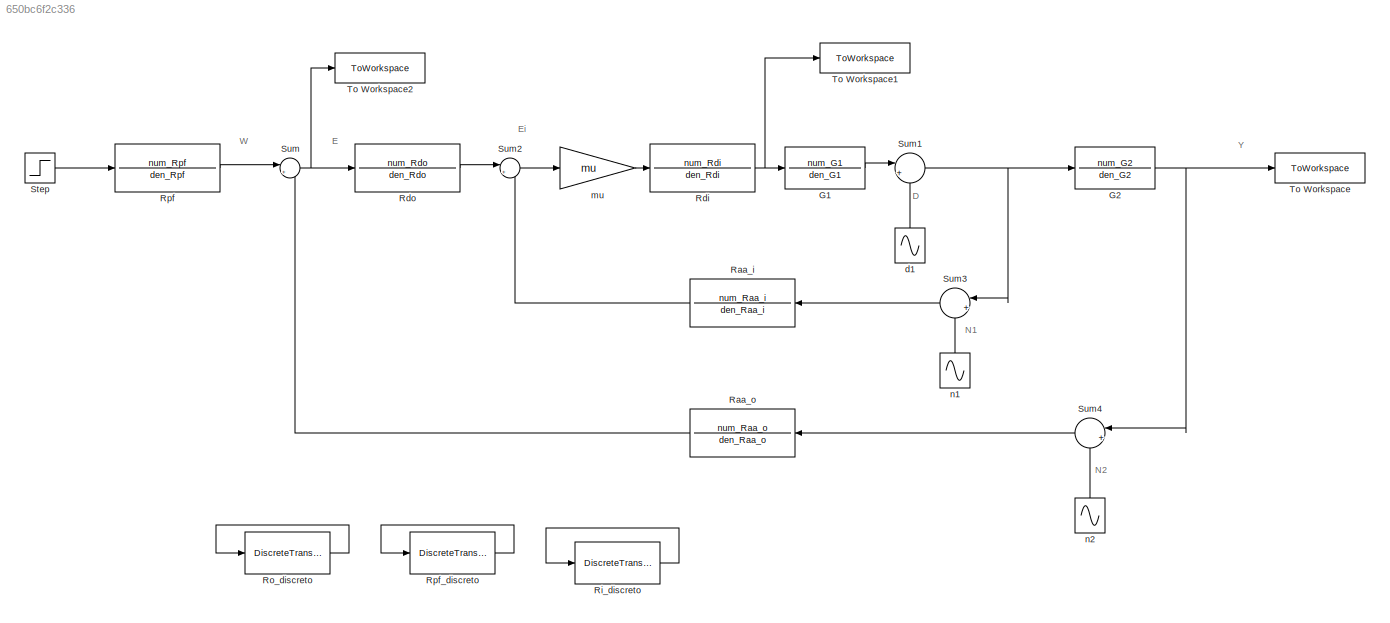
MODEL slx_650bc6f2c336
KIND model
CONFIG AbsTol = auto
CONFIG EnableMultiTasking = off
CONFIG FixedStep = auto
CONFIG MaxStep = auto
CONFIG MinStep = auto
CONFIG RelTol = 1e-3
CONFIG SampleTimeConstraint = Unconstrained
CONFIG Solver = VariableStepAuto
CONFIG SolverName = VariableStepAuto
CONFIG StartTime = 0.0
CONFIG StopTime = 10.0
BLOCK [TransferFcn] G1 
  Denominator = den_G1
  Numerator = num_G1
BLOCK [TransferFcn] G2
  Denominator = den_G2
  Numerator = num_G2
BLOCK [TransferFcn] Raa_i
  Denominator = den_Raa_i
  Numerator = num_Raa_i
BLOCK [TransferFcn] Raa_o
  Denominator = den_Raa_o
  Numerator = num_Raa_o
BLOCK [TransferFcn] Rdi 
  Denominator = den_Rdi
  Numerator = num_Rdi
BLOCK [TransferFcn] Rdo
  Denominator = den_Rdo
  Numerator = num_Rdo
BLOCK [DiscreteTransferFcn] Ri_discreto 
  Denominator = DENdi
  InputPortMap = u0
  Numerator = NUMdi
  Ports = [1, 1]
  SampleTime = Ts_i
BLOCK [DiscreteTransferFcn] Ro_discreto 
  Denominator = DENdo
  InputPortMap = u0
  Numerator = NUMdo
  Ports = [1, 1]
  SampleTime = Ts_o
BLOCK [TransferFcn] Rpf 
  Denominator = den_Rpf
  Numerator = num_Rpf
BLOCK [DiscreteTransferFcn] Rpf_discreto 
  Denominator = DENpf
  InputPortMap = u0
  Numerator = NUMpf
  Ports = [1, 1]
  SampleTime = Ts_o
BLOCK [Step] Step
  After = 1.5
  SampleTime = 0
  Time = 0
BLOCK [Sum] Sum
  IconShape = round
  InputSameDT = off
  Inputs = |+-
  OutDataTypeStr = Inherit: Inherit via internal rule
  Ports = [2, 1]
  SaturateOnIntegerOverflow = off
BLOCK [Sum] Sum1
  IconShape = round
  InputSameDT = off
  Inputs = |++
  OutDataTypeStr = Inherit: Inherit via internal rule
  Ports = [2, 1]
  SaturateOnIntegerOverflow = off
BLOCK [Sum] Sum2
  IconShape = round
  InputSameDT = off
  Inputs = |+-
  OutDataTypeStr = Inherit: Inherit via internal rule
  Ports = [2, 1]
  SaturateOnIntegerOverflow = off
BLOCK [Sum] Sum3
  IconShape = round
  InputSameDT = off
  Inputs = |++
  OutDataTypeStr = Inherit: Inherit via internal rule
  Ports = [2, 1]
  SaturateOnIntegerOverflow = off
BLOCK [Sum] Sum4
  IconShape = round
  InputSameDT = off
  Inputs = |++
  OutDataTypeStr = Inherit: Inherit via internal rule
  Ports = [2, 1]
  SaturateOnIntegerOverflow = off
BLOCK [ToWorkspace] To Workspace
  MaxDataPoints = inf
  Ports = [1]
  SampleTime = -1
  SaveFormat = Timeseries
  VariableName = y
BLOCK [ToWorkspace] To Workspace1
  MaxDataPoints = inf
  Ports = [1]
  SampleTime = -1
  SaveFormat = Timeseries
  VariableName = u
BLOCK [ToWorkspace] To Workspace2
  MaxDataPoints = inf
  Ports = [1]
  SampleTime = -1
  SaveFormat = Timeseries
  VariableName = e
BLOCK [Sin] d1
  Amplitude = 3
  Ports = [0, 1]
  SampleTime = 0
BLOCK [Gain] mu 
  Gain = mu
  OutDataTypeStr = Inherit: Inherit via internal rule
  ParamDataTypeStr = Inherit: Inherit via internal rule
  SaturateOnIntegerOverflow = off
BLOCK [Sin] n1
  Amplitude = 0.2
  Frequency = 8000
  Ports = [0, 1]
  SampleTime = 0
BLOCK [Sin] n2
  Amplitude = 0.02
  Frequency = 8000
  Ports = [0, 1]
  SampleTime = 0
ANNOTATION (root): D
ANNOTATION (root): E
ANNOTATION (root): Ei
ANNOTATION (root): N1
ANNOTATION (root): N2
ANNOTATION (root): W
ANNOTATION (root): Y
LINE G1 :1 -> Sum1:1
NET G2:1 -> Sum4:1, To Workspace:1
LINE Raa_i:1 -> Sum2:2
LINE Raa_o:1 -> Sum:2
NET Rdi :1 -> G1 :1, To Workspace1:1
LINE Rdo:1 -> Sum2:1
LINE Ri_discreto :1 -> Ri_discreto :1
LINE Ro_discreto :1 -> Ro_discreto :1
LINE Rpf :1 -> Sum:1
LINE Rpf_discreto :1 -> Rpf_discreto :1
LINE Step:1 -> Rpf :1
NET Sum1:1 -> G2:1, Sum3:1
LINE Sum2:1 -> mu :1
LINE Sum3:1 -> Raa_i:1
LINE Sum4:1 -> Raa_o:1
NET Sum:1 -> Rdo:1, To Workspace2:1
LINE d1:1 -> Sum1:2
LINE mu :1 -> Rdi :1
LINE n1:1 -> Sum3:2
LINE n2:1 -> Sum4:2
note: NET lines group one-source signal fan-out (src -> all destinations, sorted); 1:1 wires keep LINE
